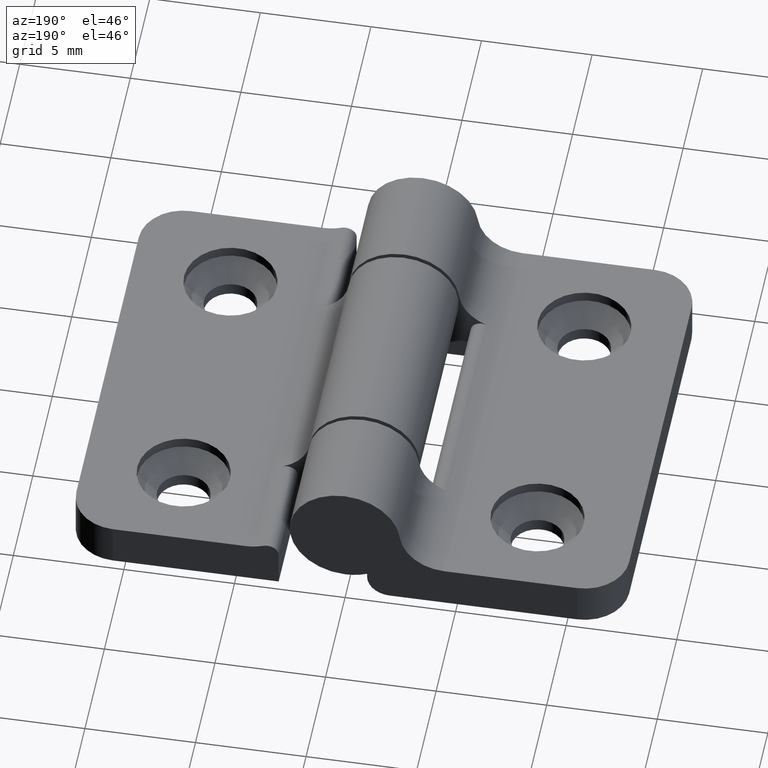
[diagram: clean part render]
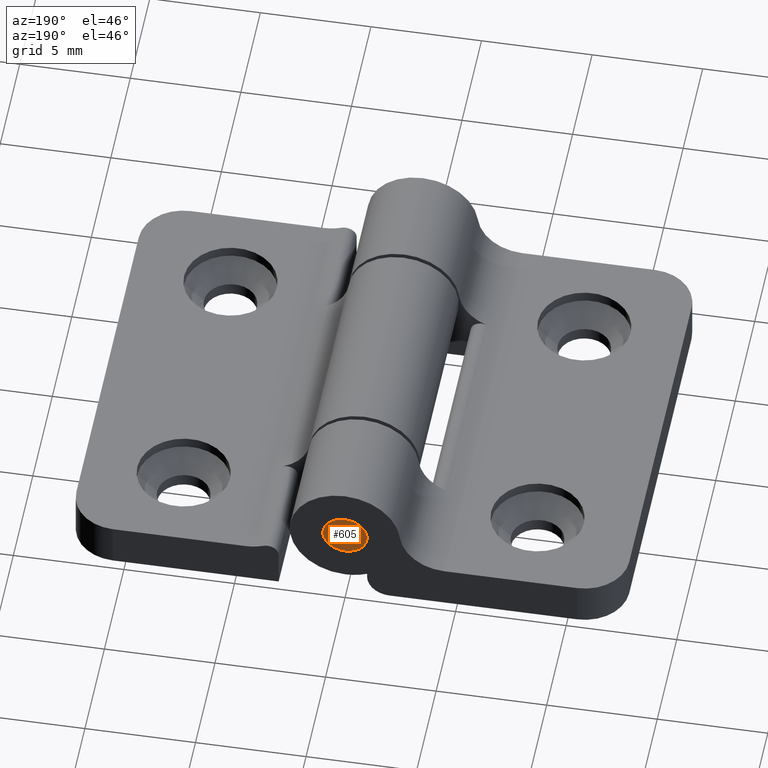
[diagram: same view with one face highlighted and labeled with its STEP entity id]
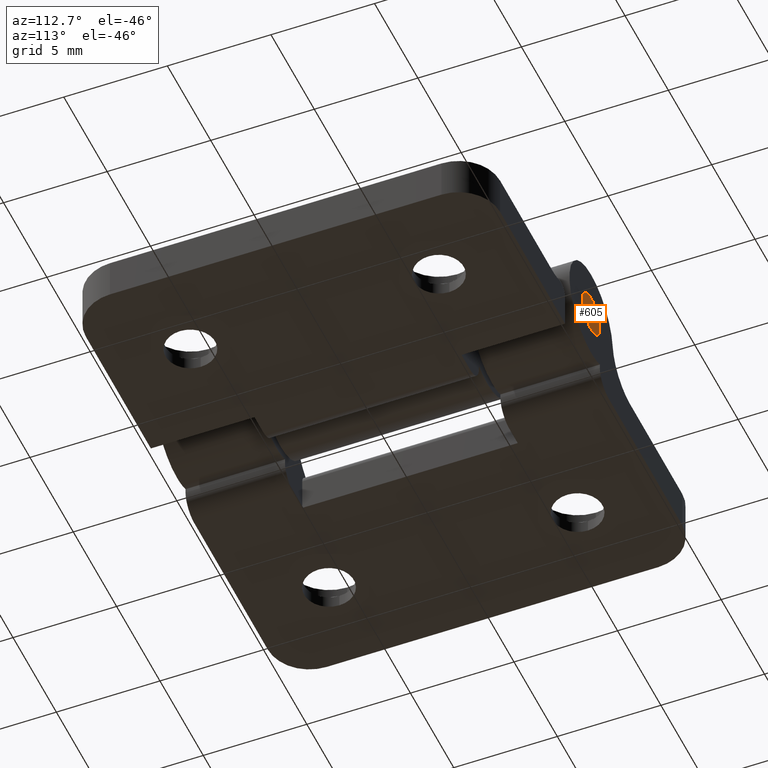
[diagram: same view with one face highlighted and labeled with its STEP entity id]
A machine part, auxiliary view. The second image highlights one B-rep face of the part: STEP entity #605.
A second angle (auxiliary view) of the same face is appended — the face is thin or edge-on in the first view.
In plain terms, the highlighted planar face has unit normal (0, 1, 0).
Its self-contained STEP definition (entity closure, byte-faithful):
#168 = FACE_OUTER_BOUND ( 'NONE', #1350, .T. ) ;
#323 = ORIENTED_EDGE ( 'NONE', *, *, #2500, .T. ) ;
#410 = AXIS2_PLACEMENT_3D ( 'NONE', #1102, #2440, #1293 ) ;
#605 = ADVANCED_FACE ( 'NONE', ( #168 ), #1010, .T. ) ;
#634 = CARTESIAN_POINT ( 'NONE',  ( 0.0000000000000000000, 20.00000000000000000, 0.0000000000000000000 ) ) ;
#685 = ORIENTED_EDGE ( 'NONE', *, *, #1378, .T. ) ;
#824 = DIRECTION ( 'NONE',  ( 0.0000000000000000000, 0.0000000000000000000, 1.000000000000000000 ) ) ;
#1010 = PLANE ( 'NONE',  #1420 ) ;
#1102 = CARTESIAN_POINT ( 'NONE',  ( 0.0000000000000000000, 20.00000000000000000, 0.0000000000000000000 ) ) ;
#1160 = VERTEX_POINT ( 'NONE', #2466 ) ;
#1203 = DIRECTION ( 'NONE',  ( 0.0000000000000000000, 1.000000000000000000, 0.0000000000000000000 ) ) ;
#1293 = DIRECTION ( 'NONE',  ( 0.0000000000000000000, 0.0000000000000000000, 1.000000000000000000 ) ) ;
#1300 = VERTEX_POINT ( 'NONE', #1643 ) ;
#1350 = EDGE_LOOP ( 'NONE', ( #685, #323 ) ) ;
#1378 = EDGE_CURVE ( 'NONE', #1300, #1160, #2273, .T. ) ;
#1400 = CARTESIAN_POINT ( 'NONE',  ( 0.0000000000000000000, 20.00000000000000000, 0.0000000000000000000 ) ) ;
#1403 = DIRECTION ( 'NONE',  ( 0.0000000000000000000, -0.0000000000000000000, 1.000000000000000000 ) ) ;
#1420 = AXIS2_PLACEMENT_3D ( 'NONE', #1400, #1203, #1403 ) ;
#1643 = CARTESIAN_POINT ( 'NONE',  ( 0.0000000000000000000, 20.00000000000000000, -1.000000000000000000 ) ) ;
#1968 = DIRECTION ( 'NONE',  ( 0.0000000000000000000, 1.000000000000000000, 0.0000000000000000000 ) ) ;
#2086 = AXIS2_PLACEMENT_3D ( 'NONE', #634, #1968, #824 ) ;
#2270 = CIRCLE ( 'NONE', #2086, 1.000000000000000000 ) ;
#2273 = CIRCLE ( 'NONE', #410, 1.000000000000000000 ) ;
#2440 = DIRECTION ( 'NONE',  ( 0.0000000000000000000, 1.000000000000000000, 0.0000000000000000000 ) ) ;
#2466 = CARTESIAN_POINT ( 'NONE',  ( 1.224646799147353200E-016, 20.00000000000000000, 1.000000000000000000 ) ) ;
#2500 = EDGE_CURVE ( 'NONE', #1160, #1300, #2270, .T. ) ;